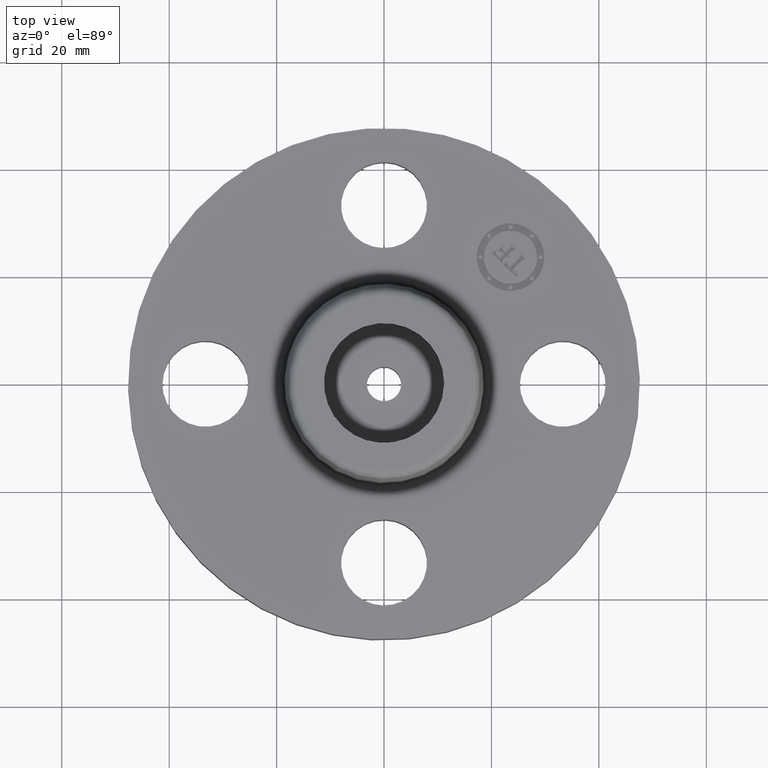
[diagram: clean part render]
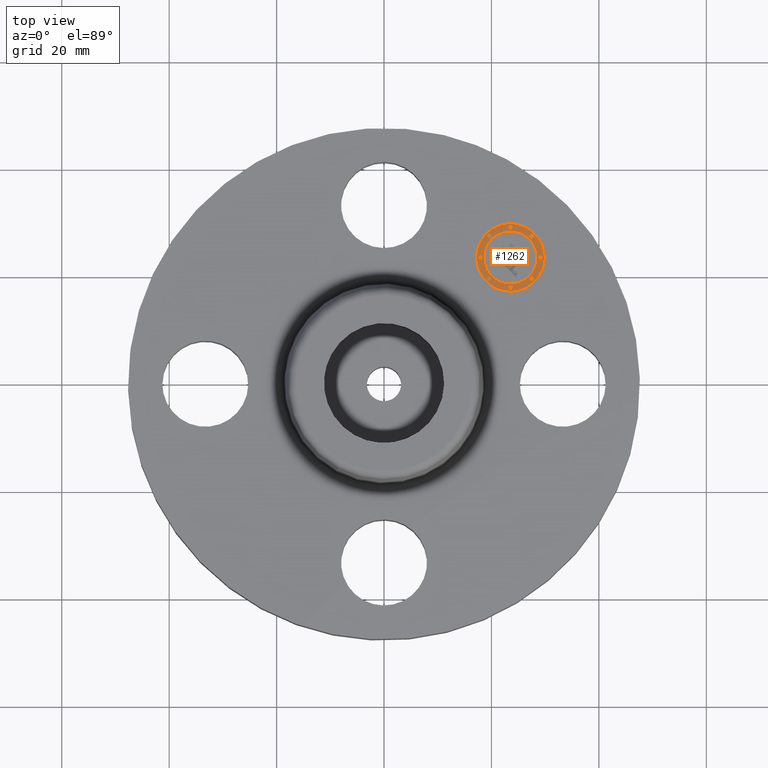
[diagram: same view with one face highlighted and labeled with its STEP entity id]
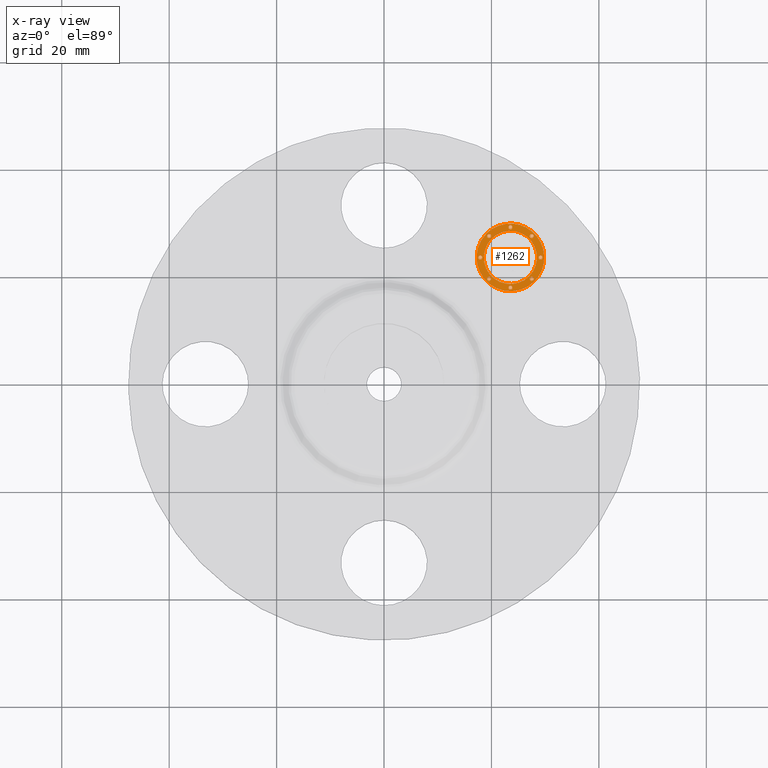
[diagram: x-ray of the same camera — body ghosted, the highlighted face saturated]
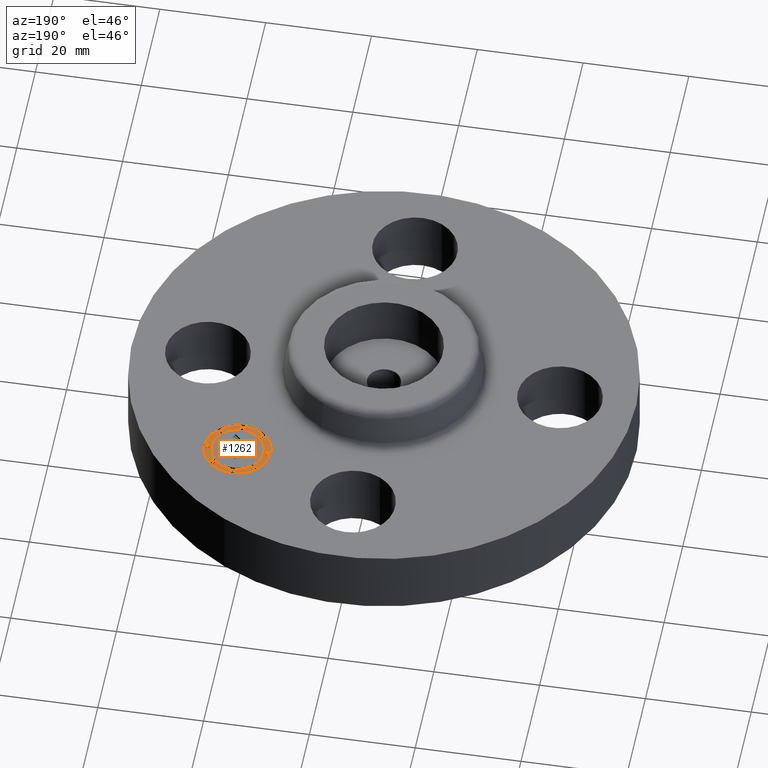
[diagram: same view with one face highlighted and labeled with its STEP entity id]
A machine part, top view. The second image highlights one B-rep face of the part: STEP entity #1262.
The next image is the same camera in x-ray: the body ghosted, the highlighted face saturated — about 0% of this face is hidden behind the body in this view.
A second angle (auxiliary view) of the same face is appended — the face is thin or edge-on in the first view.
In plain terms, the highlighted planar face has unit normal (0, -0, 1).
Its self-contained STEP definition (entity closure, byte-faithful):
#1074=AXIS2_PLACEMENT_3D('Circle Axis2P3D',#1072,#1073,$) ;
#1094=AXIS2_PLACEMENT_3D('Plane Axis2P3D',#1091,#1092,#1093) ;
#1102=AXIS2_PLACEMENT_3D('Circle Axis2P3D',#1100,#1101,$) ;
#1111=AXIS2_PLACEMENT_3D('Circle Axis2P3D',#1109,#1110,$) ;
#1120=AXIS2_PLACEMENT_3D('Circle Axis2P3D',#1118,#1119,$) ;
#1129=AXIS2_PLACEMENT_3D('Circle Axis2P3D',#1127,#1128,$) ;
#1138=AXIS2_PLACEMENT_3D('Circle Axis2P3D',#1136,#1137,$) ;
#1147=AXIS2_PLACEMENT_3D('Circle Axis2P3D',#1145,#1146,$) ;
#1156=AXIS2_PLACEMENT_3D('Circle Axis2P3D',#1154,#1155,$) ;
#1165=AXIS2_PLACEMENT_3D('Circle Axis2P3D',#1163,#1164,$) ;
#1174=AXIS2_PLACEMENT_3D('Circle Axis2P3D',#1172,#1173,$) ;
#1183=AXIS2_PLACEMENT_3D('Circle Axis2P3D',#1181,#1182,$) ;
#1192=AXIS2_PLACEMENT_3D('Circle Axis2P3D',#1190,#1191,$) ;
#1201=AXIS2_PLACEMENT_3D('Circle Axis2P3D',#1199,#1200,$) ;
#1210=AXIS2_PLACEMENT_3D('Circle Axis2P3D',#1208,#1209,$) ;
#1219=AXIS2_PLACEMENT_3D('Circle Axis2P3D',#1217,#1218,$) ;
#1228=AXIS2_PLACEMENT_3D('Circle Axis2P3D',#1226,#1227,$) ;
#1237=AXIS2_PLACEMENT_3D('Circle Axis2P3D',#1235,#1236,$) ;
#1246=AXIS2_PLACEMENT_3D('Circle Axis2P3D',#1244,#1245,$) ;
#1255=AXIS2_PLACEMENT_3D('Circle Axis2P3D',#1253,#1254,$) ;
#1025=CARTESIAN_POINT('Vertex',(0.751300955031,1.10131881169,0.485000000002)) ;
#1029=CARTESIAN_POINT('Control Point',(1.1013188117,0.751300955013,0.485000000037)) ;
#1030=CARTESIAN_POINT('Control Point',(1.12880914988,0.778791293192,0.485000000035)) ;
#1031=CARTESIAN_POINT('Control Point',(1.15090177278,0.811679346652,0.485000000033)) ;
#1032=CARTESIAN_POINT('Control Point',(1.1661763612,0.84855546518,0.485000000031)) ;
#1033=CARTESIAN_POINT('Control Point',(1.18144340551,0.926309883357,0.485000000028)) ;
#1034=CARTESIAN_POINT('Control Point',(1.16617636121,1.00406430153,0.485000000024)) ;
#1035=CARTESIAN_POINT('Control Point',(1.15090177278,1.04094042006,0.485000000023)) ;
#1036=CARTESIAN_POINT('Control Point',(1.10671652698,1.10671652698,0.485000000019)) ;
#1037=CARTESIAN_POINT('Control Point',(1.04094042006,1.15090177278,0.485000000016)) ;
#1038=CARTESIAN_POINT('Control Point',(1.00406430154,1.1661763612,0.485000000014)) ;
#1039=CARTESIAN_POINT('Control Point',(0.926309883358,1.18144340551,0.485000000011)) ;
#1040=CARTESIAN_POINT('Control Point',(0.848555465182,1.16617636121,0.485000000007)) ;
#1041=CARTESIAN_POINT('Control Point',(0.811679346653,1.15090177278,0.485000000005)) ;
#1042=CARTESIAN_POINT('Control Point',(0.778791293194,1.12880914988,0.485000000004)) ;
#1043=CARTESIAN_POINT('Control Point',(0.751300955014,1.1013188117,0.485000000002)) ;
#1044=CARTESIAN_POINT('Vertex',(1.10131881169,0.751300955031,0.485000000002)) ;
#1072=CARTESIAN_POINT('Axis2P3D Location',(0.926309883358,0.926309883358,0.485000000037)) ;
#1091=CARTESIAN_POINT('Axis2P3D Location',(0.,0.,0.485000000002)) ;
#1100=CARTESIAN_POINT('Axis2P3D Location',(0.92630988336,0.92630988336,0.485000000002)) ;
#1104=CARTESIAN_POINT('Vertex',(1.06419570568,0.788424061036,0.485000000002)) ;
#1106=CARTESIAN_POINT('Vertex',(0.788424061036,1.06419570568,0.485000000002)) ;
#1109=CARTESIAN_POINT('Axis2P3D Location',(0.92630988336,0.92630988336,0.485000000002)) ;
#1118=CARTESIAN_POINT('Axis2P3D Location',(0.76986250806,0.76986250806,0.485000000002)) ;
#1122=CARTESIAN_POINT('Vertex',(0.780469109701,0.759255906314,0.485000000002)) ;
#1124=CARTESIAN_POINT('Vertex',(0.759255906314,0.780469109701,0.485000000002)) ;
#1127=CARTESIAN_POINT('Axis2P3D Location',(0.769862508008,0.769862508008,0.485000000002)) ;
#1136=CARTESIAN_POINT('Axis2P3D Location',(0.769862508008,1.08275725866,0.485000000002)) ;
#1140=CARTESIAN_POINT('Vertex',(0.780469109753,1.07215065697,0.485000000002)) ;
#1142=CARTESIAN_POINT('Vertex',(0.759255906314,1.09336386041,0.485000000002)) ;
#1145=CARTESIAN_POINT('Axis2P3D Location',(0.76986250806,1.08275725871,0.485000000002)) ;
#1154=CARTESIAN_POINT('Axis2P3D Location',(0.705059883357,0.92630988336,0.485000000002)) ;
#1158=CARTESIAN_POINT('Vertex',(0.71566648505,0.915703281667,0.485000000002)) ;
#1160=CARTESIAN_POINT('Vertex',(0.694453281663,0.936916485054,0.485000000002)) ;
#1163=CARTESIAN_POINT('Axis2P3D Location',(0.705059883357,0.92630988336,0.485000000002)) ;
#1172=CARTESIAN_POINT('Axis2P3D Location',(1.08275725871,1.08275725871,0.485000000002)) ;
#1176=CARTESIAN_POINT('Vertex',(1.09336386041,1.07215065702,0.485000000002)) ;
#1178=CARTESIAN_POINT('Vertex',(1.07215065702,1.09336386041,0.485000000002)) ;
#1181=CARTESIAN_POINT('Axis2P3D Location',(1.08275725866,1.08275725866,0.485000000002)) ;
#1190=CARTESIAN_POINT('Axis2P3D Location',(0.92630988336,1.14755988336,0.485000000002)) ;
#1194=CARTESIAN_POINT('Vertex',(0.936916485054,1.13695328167,0.485000000002)) ;
#1196=CARTESIAN_POINT('Vertex',(0.915703281667,1.15816648506,0.485000000002)) ;
#1199=CARTESIAN_POINT('Axis2P3D Location',(0.926309883308,1.14755988331,0.485000000002)) ;
#1208=CARTESIAN_POINT('Axis2P3D Location',(1.08275725871,0.76986250806,0.485000000002)) ;
#1212=CARTESIAN_POINT('Vertex',(1.07215065697,0.780469109753,0.485000000002)) ;
#1214=CARTESIAN_POINT('Vertex',(1.09336386041,0.759255906314,0.485000000002)) ;
#1217=CARTESIAN_POINT('Axis2P3D Location',(1.08275725866,0.769862508008,0.485000000002)) ;
#1226=CARTESIAN_POINT('Axis2P3D Location',(0.92630988336,0.705059883357,0.485000000002)) ;
#1230=CARTESIAN_POINT('Vertex',(0.915703281667,0.71566648505,0.485000000002)) ;
#1232=CARTESIAN_POINT('Vertex',(0.936916485054,0.694453281663,0.485000000002)) ;
#1235=CARTESIAN_POINT('Axis2P3D Location',(0.92630988336,0.705059883357,0.485000000002)) ;
#1244=CARTESIAN_POINT('Axis2P3D Location',(1.14755988331,0.926309883308,0.485000000002)) ;
#1248=CARTESIAN_POINT('Vertex',(1.13695328167,0.936916485054,0.485000000002)) ;
#1250=CARTESIAN_POINT('Vertex',(1.15816648506,0.915703281667,0.485000000002)) ;
#1253=CARTESIAN_POINT('Axis2P3D Location',(1.14755988336,0.92630988336,0.485000000002)) ;
#1073=DIRECTION('Axis2P3D Direction',(-0.,0.,0.0393700787402)) ;
#1092=DIRECTION('Axis2P3D Direction',(0.,-0.,0.0393700787402)) ;
#1093=DIRECTION('Axis2P3D XDirection',(0.027838849653,0.027838849653,0.)) ;
#1101=DIRECTION('Axis2P3D Direction',(0.,-0.,0.0393700787402)) ;
#1110=DIRECTION('Axis2P3D Direction',(0.,-0.,0.0393700787402)) ;
#1119=DIRECTION('Axis2P3D Direction',(0.,-0.,0.0393700787402)) ;
#1128=DIRECTION('Axis2P3D Direction',(0.,-0.,0.0393700787402)) ;
#1137=DIRECTION('Axis2P3D Direction',(0.,-0.,0.0393700787402)) ;
#1146=DIRECTION('Axis2P3D Direction',(0.,-0.,0.0393700787402)) ;
#1155=DIRECTION('Axis2P3D Direction',(0.,-0.,0.0393700787402)) ;
#1164=DIRECTION('Axis2P3D Direction',(0.,-0.,0.0393700787402)) ;
#1173=DIRECTION('Axis2P3D Direction',(0.,-0.,0.0393700787402)) ;
#1182=DIRECTION('Axis2P3D Direction',(0.,-0.,0.0393700787402)) ;
#1191=DIRECTION('Axis2P3D Direction',(0.,-0.,0.0393700787402)) ;
#1200=DIRECTION('Axis2P3D Direction',(0.,-0.,0.0393700787402)) ;
#1209=DIRECTION('Axis2P3D Direction',(0.,-0.,0.0393700787402)) ;
#1218=DIRECTION('Axis2P3D Direction',(0.,-0.,0.0393700787402)) ;
#1227=DIRECTION('Axis2P3D Direction',(0.,-0.,0.0393700787402)) ;
#1236=DIRECTION('Axis2P3D Direction',(0.,-0.,0.0393700787402)) ;
#1245=DIRECTION('Axis2P3D Direction',(0.,-0.,0.0393700787402)) ;
#1254=DIRECTION('Axis2P3D Direction',(0.,-0.,0.0393700787402)) ;
#1097=ORIENTED_EDGE('',*,*,#1076,.T.) ;
#1098=ORIENTED_EDGE('',*,*,#1046,.T.) ;
#1115=ORIENTED_EDGE('',*,*,#1108,.F.) ;
#1116=ORIENTED_EDGE('',*,*,#1113,.F.) ;
#1133=ORIENTED_EDGE('',*,*,#1126,.F.) ;
#1134=ORIENTED_EDGE('',*,*,#1131,.F.) ;
#1151=ORIENTED_EDGE('',*,*,#1144,.F.) ;
#1152=ORIENTED_EDGE('',*,*,#1149,.F.) ;
#1169=ORIENTED_EDGE('',*,*,#1162,.F.) ;
#1170=ORIENTED_EDGE('',*,*,#1167,.F.) ;
#1187=ORIENTED_EDGE('',*,*,#1180,.F.) ;
#1188=ORIENTED_EDGE('',*,*,#1185,.F.) ;
#1205=ORIENTED_EDGE('',*,*,#1198,.F.) ;
#1206=ORIENTED_EDGE('',*,*,#1203,.F.) ;
#1223=ORIENTED_EDGE('',*,*,#1216,.F.) ;
#1224=ORIENTED_EDGE('',*,*,#1221,.F.) ;
#1241=ORIENTED_EDGE('',*,*,#1234,.F.) ;
#1242=ORIENTED_EDGE('',*,*,#1239,.F.) ;
#1259=ORIENTED_EDGE('',*,*,#1252,.F.) ;
#1260=ORIENTED_EDGE('',*,*,#1257,.F.) ;
#1117=FACE_BOUND('',#1114,.T.) ;
#1135=FACE_BOUND('',#1132,.T.) ;
#1153=FACE_BOUND('',#1150,.T.) ;
#1171=FACE_BOUND('',#1168,.T.) ;
#1189=FACE_BOUND('',#1186,.T.) ;
#1207=FACE_BOUND('',#1204,.T.) ;
#1225=FACE_BOUND('',#1222,.T.) ;
#1243=FACE_BOUND('',#1240,.T.) ;
#1261=FACE_BOUND('',#1258,.T.) ;
#1262=ADVANCED_FACE('PartBody',(#1099,#1117,#1135,#1153,#1171,#1189,#1207,#1225,#1243,#1261),#1095,.T.) ;
#1028=B_SPLINE_CURVE_WITH_KNOTS('',5,(#1029,#1030,#1031,#1032,#1033,#1034,#1035,#1036,#1037,#1038,#1039,#1040,#1041,#1042,#1043),.UNSPECIFIED.,.F.,.U.,(6,3,3,3,6),(-9.87481110845,-4.93740555423,0.,4.93740555423,9.87481110845),.UNSPECIFIED.) ;
#1075=CIRCLE('generated circle',#1074,0.247500000001) ;
#1103=CIRCLE('generated circle',#1102,0.19499999999) ;
#1112=CIRCLE('generated circle',#1111,0.19499999999) ;
#1121=CIRCLE('generated circle',#1120,0.0149999999654) ;
#1130=CIRCLE('generated circle',#1129,0.0149999999654) ;
#1139=CIRCLE('generated circle',#1138,0.0150000000021) ;
#1148=CIRCLE('generated circle',#1147,0.0150000000021) ;
#1157=CIRCLE('generated circle',#1156,0.0149999999654) ;
#1166=CIRCLE('generated circle',#1165,0.0149999999654) ;
#1175=CIRCLE('generated circle',#1174,0.0149999999654) ;
#1184=CIRCLE('generated circle',#1183,0.0149999999654) ;
#1193=CIRCLE('generated circle',#1192,0.0149999999654) ;
#1202=CIRCLE('generated circle',#1201,0.0149999999654) ;
#1211=CIRCLE('generated circle',#1210,0.0150000000021) ;
#1220=CIRCLE('generated circle',#1219,0.0150000000021) ;
#1229=CIRCLE('generated circle',#1228,0.0149999999654) ;
#1238=CIRCLE('generated circle',#1237,0.0149999999654) ;
#1247=CIRCLE('generated circle',#1246,0.0149999999654) ;
#1256=CIRCLE('generated circle',#1255,0.0149999999654) ;
#1046=EDGE_CURVE('',#1045,#1026,#1028,.T.) ;
#1076=EDGE_CURVE('',#1026,#1045,#1075,.T.) ;
#1108=EDGE_CURVE('',#1105,#1107,#1103,.T.) ;
#1113=EDGE_CURVE('',#1107,#1105,#1112,.T.) ;
#1126=EDGE_CURVE('',#1123,#1125,#1121,.T.) ;
#1131=EDGE_CURVE('',#1125,#1123,#1130,.T.) ;
#1144=EDGE_CURVE('',#1141,#1143,#1139,.T.) ;
#1149=EDGE_CURVE('',#1143,#1141,#1148,.T.) ;
#1162=EDGE_CURVE('',#1159,#1161,#1157,.T.) ;
#1167=EDGE_CURVE('',#1161,#1159,#1166,.T.) ;
#1180=EDGE_CURVE('',#1177,#1179,#1175,.T.) ;
#1185=EDGE_CURVE('',#1179,#1177,#1184,.T.) ;
#1198=EDGE_CURVE('',#1195,#1197,#1193,.T.) ;
#1203=EDGE_CURVE('',#1197,#1195,#1202,.T.) ;
#1216=EDGE_CURVE('',#1213,#1215,#1211,.T.) ;
#1221=EDGE_CURVE('',#1215,#1213,#1220,.T.) ;
#1234=EDGE_CURVE('',#1231,#1233,#1229,.T.) ;
#1239=EDGE_CURVE('',#1233,#1231,#1238,.T.) ;
#1252=EDGE_CURVE('',#1249,#1251,#1247,.T.) ;
#1257=EDGE_CURVE('',#1251,#1249,#1256,.T.) ;
#1096=EDGE_LOOP('',(#1097,#1098)) ;
#1114=EDGE_LOOP('',(#1115,#1116)) ;
#1132=EDGE_LOOP('',(#1133,#1134)) ;
#1150=EDGE_LOOP('',(#1151,#1152)) ;
#1168=EDGE_LOOP('',(#1169,#1170)) ;
#1186=EDGE_LOOP('',(#1187,#1188)) ;
#1204=EDGE_LOOP('',(#1205,#1206)) ;
#1222=EDGE_LOOP('',(#1223,#1224)) ;
#1240=EDGE_LOOP('',(#1241,#1242)) ;
#1258=EDGE_LOOP('',(#1259,#1260)) ;
#1099=FACE_OUTER_BOUND('',#1096,.T.) ;
#1095=PLANE('',#1094) ;
#1026=VERTEX_POINT('',#1025) ;
#1045=VERTEX_POINT('',#1044) ;
#1105=VERTEX_POINT('',#1104) ;
#1107=VERTEX_POINT('',#1106) ;
#1123=VERTEX_POINT('',#1122) ;
#1125=VERTEX_POINT('',#1124) ;
#1141=VERTEX_POINT('',#1140) ;
#1143=VERTEX_POINT('',#1142) ;
#1159=VERTEX_POINT('',#1158) ;
#1161=VERTEX_POINT('',#1160) ;
#1177=VERTEX_POINT('',#1176) ;
#1179=VERTEX_POINT('',#1178) ;
#1195=VERTEX_POINT('',#1194) ;
#1197=VERTEX_POINT('',#1196) ;
#1213=VERTEX_POINT('',#1212) ;
#1215=VERTEX_POINT('',#1214) ;
#1231=VERTEX_POINT('',#1230) ;
#1233=VERTEX_POINT('',#1232) ;
#1249=VERTEX_POINT('',#1248) ;
#1251=VERTEX_POINT('',#1250) ;